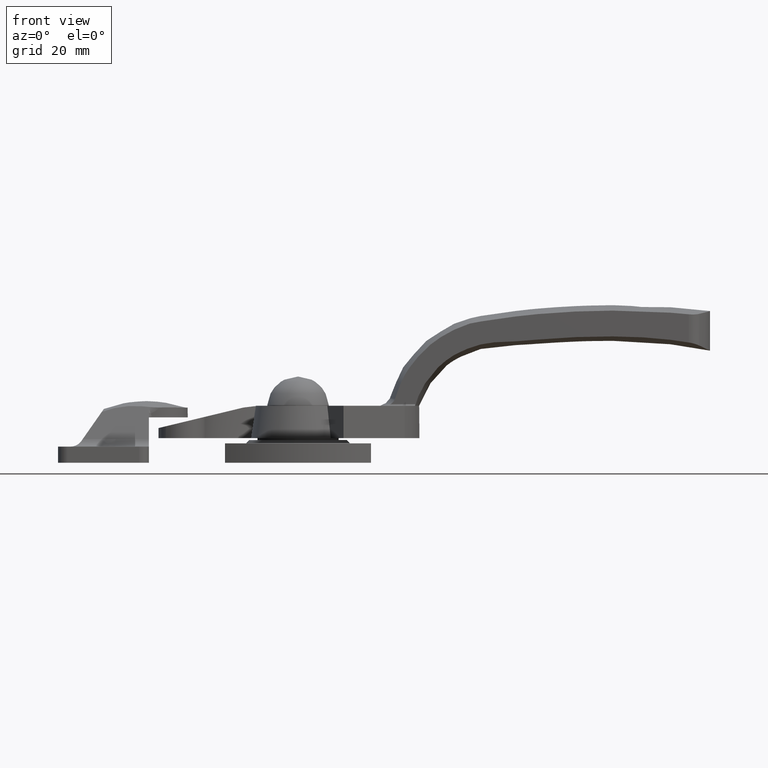
[diagram: clean part render]
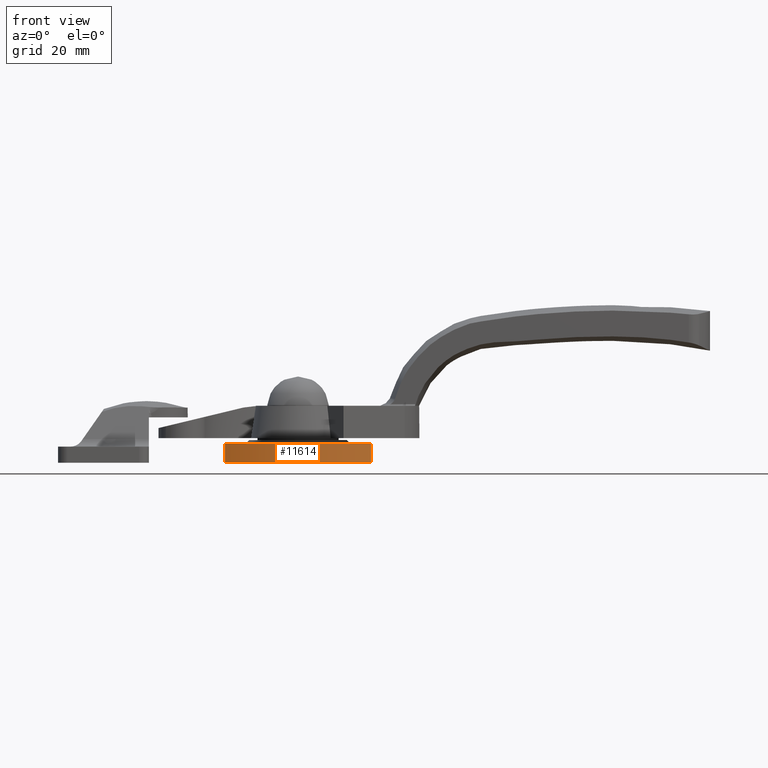
[diagram: same view with one face highlighted and labeled with its STEP entity id]
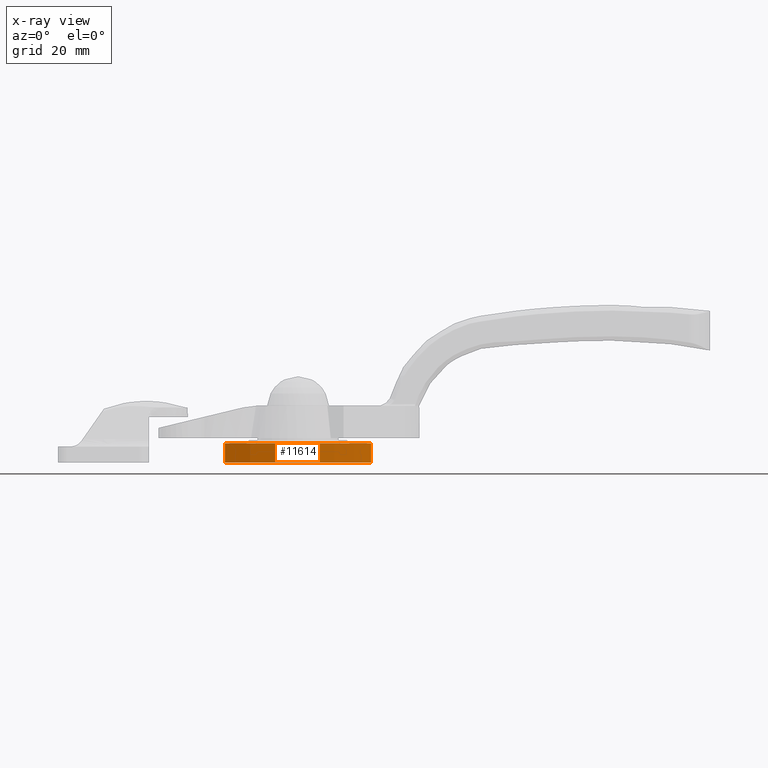
[diagram: x-ray of the same camera — body ghosted, the highlighted face saturated]
A machine part, front view. The second image highlights one B-rep face of the part: STEP entity #11614.
The next image is the same camera in x-ray: the body ghosted, the highlighted face saturated — about 0% of this face is hidden behind the body in this view.
In plain terms, the highlighted face is a freeform B-spline surface patch.
Its self-contained STEP definition (entity closure, byte-faithful):
#11460=CARTESIAN_POINT('',(-22.500000000000000,-38.971142999999998,0.0));
#11461=VERTEX_POINT('',#11460);
#11467=CARTESIAN_POINT('',(-22.500000000000000,-38.971142999999998,6.0));
#11468=VERTEX_POINT('',#11467);
#11469=CARTESIAN_POINT('',(-22.500000000000000,-38.971142999999998,6.0));
#11470=CARTESIAN_POINT('',(-22.500000000000000,-38.971142999999998,0.0));
#11471=QUASI_UNIFORM_CURVE('',1,(#11469,#11470),.UNSPECIFIED.,.F.,.U.);
#11472=EDGE_CURVE('',#11468,#11461,#11471,.T.);
#11547=CARTESIAN_POINT('',(22.500000000000000,-38.971142999999998,0.0));
#11548=VERTEX_POINT('',#11547);
#11555=CARTESIAN_POINT('',(22.500000000000000,-38.971142999999998,6.0));
#11556=VERTEX_POINT('',#11555);
#11562=CARTESIAN_POINT('',(22.500000000000000,-38.971142999999998,6.0));
#11563=CARTESIAN_POINT('',(22.500000000000000,-38.971142999999998,0.0));
#11564=QUASI_UNIFORM_CURVE('',1,(#11562,#11563),.UNSPECIFIED.,.F.,.U.);
#11565=EDGE_CURVE('',#11556,#11548,#11564,.T.);
#11570=CARTESIAN_POINT('',(-22.839226406599259,-38.773312176651842,6.150000000000001));
#11571=CARTESIAN_POINT('',(-22.839226406599259,-38.773312176651842,-0.153750000000001));
#11572=CARTESIAN_POINT('',(1.090453958008382,-52.868971200951918,6.150000000000002));
#11573=CARTESIAN_POINT('',(1.090453958008382,-52.868971200951918,-0.153750000000000));
#11574=CARTESIAN_POINT('',(24.418567448796033,-37.798592086856864,6.150000000000001));
#11575=CARTESIAN_POINT('',(24.418567448796033,-37.798592086856864,-0.153750000000001));
#11583=(BOUNDED_SURFACE()B_SPLINE_SURFACE(1,2,((#11570,#11572,#11574),(#11571,#11573,#11575)),.UNSPECIFIED.,.F.,.F.,.U.)B_SPLINE_SURFACE_WITH_KNOTS((2,2),(3,3),(0.0,6.303750000000002),(0.0,51.073286561976559),.UNSPECIFIED.)GEOMETRIC_REPRESENTATION_ITEM()RATIONAL_B_SPLINE_SURFACE(((1.0,0.849639097774074,0.996851313703595),(1.0,0.849639097774074,0.996851313703595)))REPRESENTATION_ITEM('')SURFACE());
#11584=CARTESIAN_POINT('',(-22.500000000000000,-38.971142999999998,0.0));
#11585=CARTESIAN_POINT('',(-6.938894E-015,-51.961524283832887,0.0));
#11586=CARTESIAN_POINT('',(22.500000000000000,-38.971142999999998,0.0));
#11594=(BOUNDED_CURVE()B_SPLINE_CURVE(2,(#11584,#11585,#11586),.UNSPECIFIED.,.F.,.U.)CURVE()GEOMETRIC_REPRESENTATION_ITEM()QUASI_UNIFORM_CURVE()RATIONAL_B_SPLINE_CURVE((1.0,0.866025402838329,1.0))REPRESENTATION_ITEM(''));
#11595=EDGE_CURVE('',#11461,#11548,#11594,.T.);
#11596=ORIENTED_EDGE('',*,*,#11595,.T.);
#11597=ORIENTED_EDGE('',*,*,#11565,.F.);
#11598=CARTESIAN_POINT('',(-22.500000000000000,-38.971142999999998,6.0));
#11599=CARTESIAN_POINT('',(-6.938894E-015,-51.961524283832887,6.0));
#11600=CARTESIAN_POINT('',(22.500000000000000,-38.971142999999998,6.0));
#11608=(BOUNDED_CURVE()B_SPLINE_CURVE(2,(#11598,#11599,#11600),.UNSPECIFIED.,.F.,.U.)CURVE()GEOMETRIC_REPRESENTATION_ITEM()QUASI_UNIFORM_CURVE()RATIONAL_B_SPLINE_CURVE((1.0,0.866025402838329,1.0))REPRESENTATION_ITEM(''));
#11609=EDGE_CURVE('',#11468,#11556,#11608,.T.);
#11610=ORIENTED_EDGE('',*,*,#11609,.F.);
#11611=ORIENTED_EDGE('',*,*,#11472,.T.);
#11612=EDGE_LOOP('',(#11596,#11597,#11610,#11611));
#11613=FACE_OUTER_BOUND('',#11612,.T.);
#11614=ADVANCED_FACE('',(#11613),#11583,.T.);